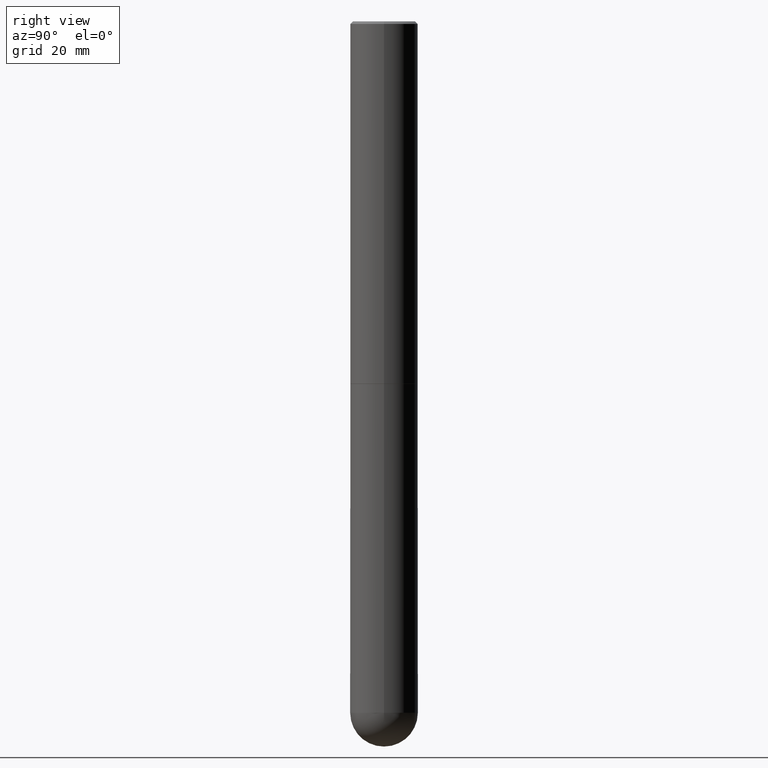
[diagram: clean part render]
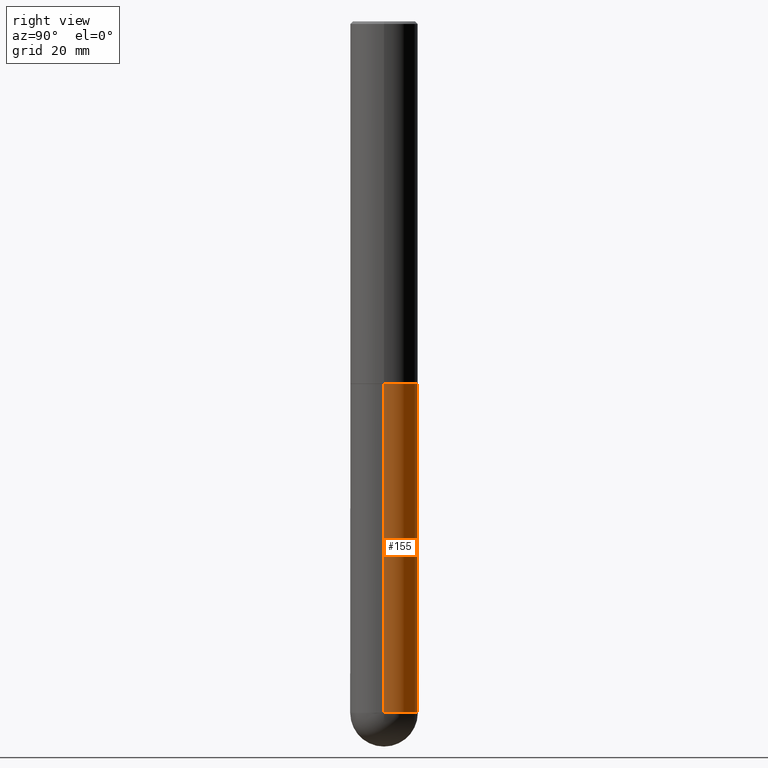
[diagram: same view with one face highlighted and labeled with its STEP entity id]
A machine part, right view. The second image highlights one B-rep face of the part: STEP entity #155.
In plain terms, the highlighted cylindrical surface (edge-blend (fillet) strip) has radius 7.0002 mm, axis along (-0, 0, 1).
Its self-contained STEP definition (entity closure, byte-faithful):
#1 = DIRECTION ( 'NONE',  ( -2.445468806185136597E-29, 3.491481338843145583E-15, 1.000000000000000000 ) ) ;
#7 = EDGE_CURVE ( 'NONE', #316, #222, #266, .T. ) ;
#16 = VERTEX_POINT ( 'NONE', #103 ) ;
#27 = CARTESIAN_POINT ( 'NONE',  ( -0.2756000000000000671, 1.958255779754836589E-15, -1.355658510874252287E-29 ) ) ;
#28 = LINE ( 'NONE', #244, #153 ) ;
#44 = FACE_OUTER_BOUND ( 'NONE', #340, .T. ) ;
#45 = CARTESIAN_POINT ( 'NONE',  ( 1.376774483194169922E-28, -1.965669078955302449E-14, -5.629900000000000126 ) ) ;
#46 = DIRECTION ( 'NONE',  ( -2.445468806185136597E-29, 3.491481338843145583E-15, 1.000000000000000000 ) ) ;
#48 = EDGE_CURVE ( 'NONE', #148, #91, #154, .T. ) ;
#64 = DIRECTION ( 'NONE',  ( -2.445468806185136597E-29, 3.491481338843145583E-15, 1.000000000000000000 ) ) ;
#68 = CARTESIAN_POINT ( 'NONE',  ( 0.000000000000000000, 0.000000000000000000, 0.000000000000000000 ) ) ;
#71 = DIRECTION ( 'NONE',  ( 1.000000000000000000, -6.982962677686267499E-15, 4.876176775795935793E-29 ) ) ;
#73 = DIRECTION ( 'NONE',  ( -2.445468806185136597E-29, 3.491481338843145583E-15, 1.000000000000000000 ) ) ;
#82 = ORIENTED_EDGE ( 'NONE', *, *, #48, .F. ) ;
#91 = VERTEX_POINT ( 'NONE', #262 ) ;
#99 = DIRECTION ( 'NONE',  ( 1.000000000000000000, -6.982962677686264344E-15, 0.000000000000000000 ) ) ;
#103 = CARTESIAN_POINT ( 'NONE',  ( 0.2756000000000000671, -1.690749838334792865E-14, -5.629900000000000126 ) ) ;
#108 = ORIENTED_EDGE ( 'NONE', *, *, #223, .T. ) ;
#118 = CIRCLE ( 'NONE', #270, 0.2756000000000000671 ) ;
#127 = AXIS2_PLACEMENT_3D ( 'NONE', #68, #1, #71 ) ;
#148 = VERTEX_POINT ( 'NONE', #326 ) ;
#151 = DIRECTION ( 'NONE',  ( -2.445468806185136877E-29, 3.491481338843145188E-15, 1.000000000000000000 ) ) ;
#152 = CARTESIAN_POINT ( 'NONE',  ( -0.2756000000000000671, -1.302473808962275553E-14, -5.629900000000000126 ) ) ;
#153 = VECTOR ( 'NONE', #408, 39.37007874015748143 ) ;
#154 = CIRCLE ( 'NONE', #243, 0.2756000000000000116 ) ;
#155 = ADVANCED_FACE ( 'NONE', ( #44 ), #345, .T. ) ;
#171 = AXIS2_PLACEMENT_3D ( 'NONE', #320, #73, #99 ) ;
#184 = LINE ( 'NONE', #27, #212 ) ;
#196 = DIRECTION ( 'NONE',  ( 1.000000000000000000, -6.982962677686264344E-15, 0.000000000000000000 ) ) ;
#212 = VECTOR ( 'NONE', #151, 39.37007874015748143 ) ;
#222 = VERTEX_POINT ( 'NONE', #152 ) ;
#223 = EDGE_CURVE ( 'NONE', #222, #91, #184, .T. ) ;
#227 = DIRECTION ( 'NONE',  ( 1.000000000000000000, -6.982962677686265922E-15, 0.000000000000000000 ) ) ;
#243 = AXIS2_PLACEMENT_3D ( 'NONE', #291, #46, #227 ) ;
#244 = CARTESIAN_POINT ( 'NONE',  ( 0.2756000000000000671, -1.924504513970335743E-15, 1.343874319409360268E-29 ) ) ;
#262 = CARTESIAN_POINT ( 'NONE',  ( -0.2756000000000000116, -1.302473808962275237E-14, -2.952700000000000102 ) ) ;
#266 = CIRCLE ( 'NONE', #171, 0.2756000000000000671 ) ;
#270 = AXIS2_PLACEMENT_3D ( 'NONE', #45, #64, #196 ) ;
#290 = CARTESIAN_POINT ( 'NONE',  ( 1.924504513970471427E-15, 0.2755999999999801942, -5.629900000000001015 ) ) ;
#291 = CARTESIAN_POINT ( 'NONE',  ( 7.220735744022852519E-29, -1.030929694920215502E-14, -2.952700000000000102 ) ) ;
#316 = VERTEX_POINT ( 'NONE', #290 ) ;
#320 = CARTESIAN_POINT ( 'NONE',  ( 1.376774483194169922E-28, -1.965669078955302449E-14, -5.629900000000000126 ) ) ;
#322 = ORIENTED_EDGE ( 'NONE', *, *, #7, .T. ) ;
#326 = CARTESIAN_POINT ( 'NONE',  ( 0.2756000000000000116, -1.223380146317248997E-14, -2.952700000000000102 ) ) ;
#333 = ORIENTED_EDGE ( 'NONE', *, *, #338, .T. ) ;
#338 = EDGE_CURVE ( 'NONE', #16, #316, #118, .T. ) ;
#340 = EDGE_LOOP ( 'NONE', ( #322, #108, #82, #352, #333 ) ) ;
#345 = CYLINDRICAL_SURFACE ( 'NONE', #127, 0.2756000000000000671 ) ;
#352 = ORIENTED_EDGE ( 'NONE', *, *, #374, .F. ) ;
#374 = EDGE_CURVE ( 'NONE', #16, #148, #28, .T. ) ;
#408 = DIRECTION ( 'NONE',  ( -2.445468806185136877E-29, 3.491481338843145188E-15, 1.000000000000000000 ) ) ;